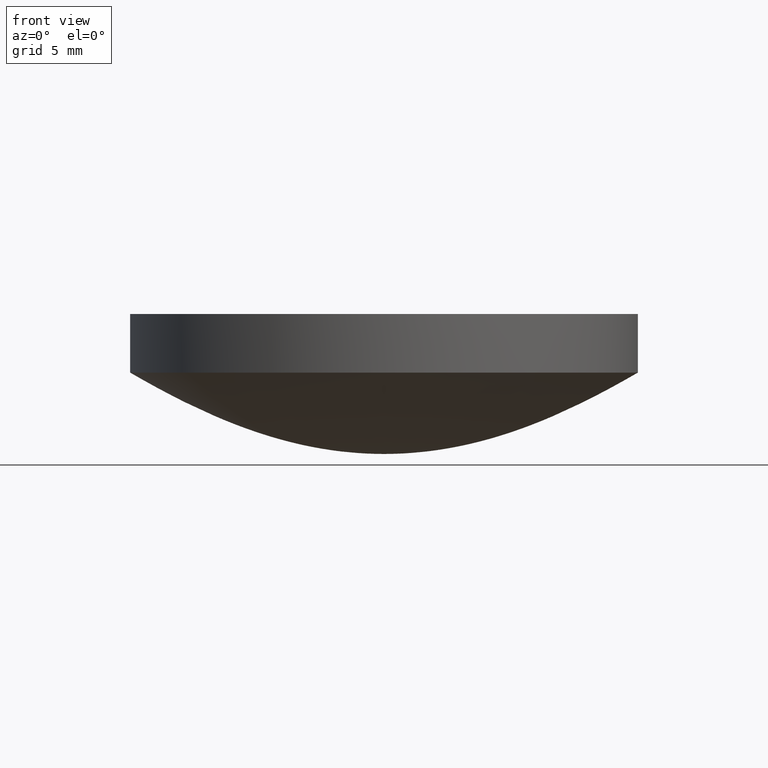
[diagram: clean part render]
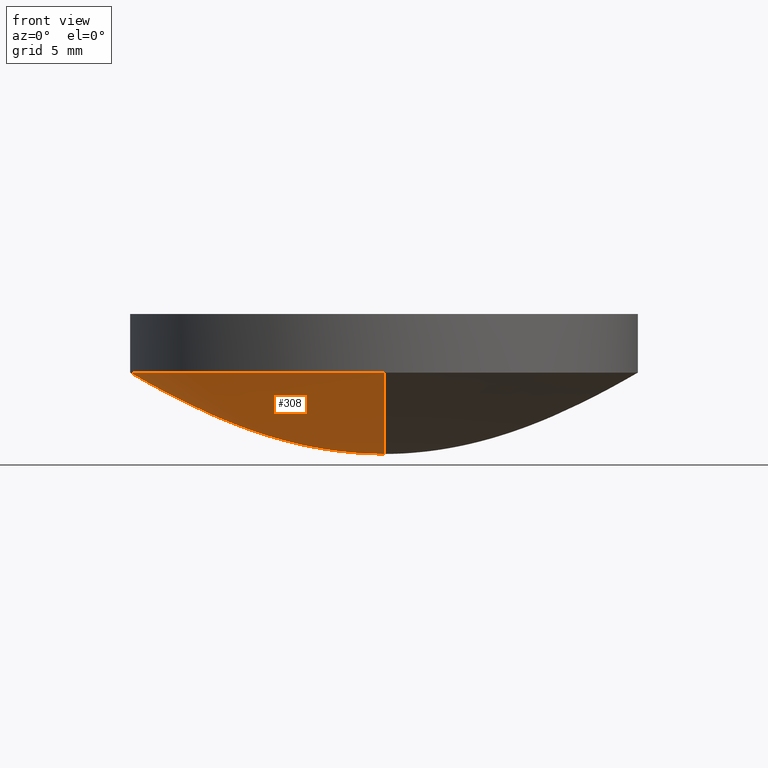
[diagram: same view with one face highlighted and labeled with its STEP entity id]
A machine part, front view. The second image highlights one B-rep face of the part: STEP entity #308.
In plain terms, the highlighted face is a freeform B-spline surface patch.
Its self-contained STEP definition (entity closure, byte-faithful):
#1 = CARTESIAN_POINT ( 'NONE',  ( 0.000000000000000000, 12.00479254064729950, 3.667064022752589914 ) ) ;
#5 = CARTESIAN_POINT ( 'NONE',  ( 7.594301245238770370, -1.395050506761360116E-15, 1.533470957631930087 ) ) ;
#7 = CARTESIAN_POINT ( 'NONE',  ( 6.711633172175790030, -6.711633172175790030, 1.203886913266370096 ) ) ;
#9 = CARTESIAN_POINT ( 'NONE',  ( -6.006055148341420846, 3.677648106459400720E-16, 0.9667882177834620228 ) ) ;
#10 = CARTESIAN_POINT ( 'NONE',  ( -6.711633172175790030, 4.109690040678139960E-16, 1.203886913266370096 ) ) ;
#11 = CARTESIAN_POINT ( 'NONE',  ( 0.000000000000000000, 0.2648328616955860082, 0.000000000000000000 ) ) ;
#13 = VERTEX_POINT ( 'NONE', #352 ) ;
#15 = CARTESIAN_POINT ( 'NONE',  ( -2.827385974584470052, 1.731274591864490094E-16, 0.2123206717078350014 ) ) ;
#16 = ORIENTED_EDGE ( 'NONE', *, *, #172, .F. ) ;
#18 = CARTESIAN_POINT ( 'NONE',  ( 0.000000000000000000, 4.417048690703129665, 0.5241299113884619887 ) ) ;
#22 = CARTESIAN_POINT ( 'NONE',  ( -6.273697908756820634E-16, -5.122863108877440119, 0.7050934592128860201 ) ) ;
#26 = CARTESIAN_POINT ( 'NONE',  ( -3.243267163845330030E-17, -0.2648328616955860082, 0.000000000000000000 ) ) ;
#28 = CARTESIAN_POINT ( 'NONE',  ( -1.555301434917141588E-15, -12.70000000000000462, 4.070440747888570243 ) ) ;
#34 = CARTESIAN_POINT ( 'NONE',  ( 0.000000000000000000, 0.000000000000000000, 0.000000000000000000 ) ) ;
#35 = CARTESIAN_POINT ( 'NONE',  ( -12.00479254064729950, 7.350815379665869921E-16, 3.667064022752589914 ) ) ;
#37 = CARTESIAN_POINT ( 'NONE',  ( 0.000000000000000000, 1.855821823687519911, 0.08601257208149051814 ) ) ;
#38 = CARTESIAN_POINT ( 'NONE',  ( -1.191719837553290114E-16, -0.9731130954516921117, 0.01543048580902020225 ) ) ;
#41 = CARTESIAN_POINT ( 'NONE',  ( 0.000000000000000000, 7.594301245238770370, 1.533470957631930087 ) ) ;
#45 = CARTESIAN_POINT ( 'NONE',  ( 0.000000000000000000, 6.711633172175790030, 1.203886913266370096 ) ) ;
#47 = CARTESIAN_POINT ( 'NONE',  ( -8.219380081356279919E-16, -6.711633172175790030, 1.203886913266370096 ) ) ;
#49 = CARTESIAN_POINT ( 'NONE',  ( -8.299626648234200488, -8.299626648234200488, 1.822880464037990311 ) ) ;
#50 = CARTESIAN_POINT ( 'NONE',  ( -9.886807867845659459, -9.886807867845650577, 2.551412349714330396 ) ) ;
#56 = CARTESIAN_POINT ( 'NONE',  ( 3.533405957217320204, -3.533405957217320204, 0.3344205416368839501 ) ) ;
#59 = CARTESIAN_POINT ( 'NONE',  ( -3.533405957217320204, -3.533405957217320204, 0.3344205416368839501 ) ) ;
#62 = CARTESIAN_POINT ( 'NONE',  ( -1.855821823687519911, 1.855821823687519911, 0.08601257208149050426 ) ) ;
#64 = B_SPLINE_CURVE_WITH_KNOTS ( 'NONE', 3,
 ( #536, #314, #486, #230, #151, #444, #68, #108, #311, #414, #241, #361, #451, #441, #38, #490, #112 ),
 .UNSPECIFIED., .F., .F.,
 ( 4, 1, 1, 1, 1, 1, 1, 1, 1, 1, 1, 1, 1, 1, 4 ),
 ( 0.000000000000000000, 0.1786505433435620072, 0.2225930362310299948, 0.3094249444054230080, 0.3523143596923489773, 0.4370447528922249969, 0.4788857308051759909, 0.5616114302726280538, 0.6024961518271300109, 0.6834766971770069865, 0.7235725209723830043, 0.8032027717589680371, 0.8427371987501770523, 0.9411358128706930337, 1.000000000000000000 ),
 .UNSPECIFIED. ) ;
#66 = CARTESIAN_POINT ( 'NONE',  ( 5.122863108877440119, -9.410546863135229472E-16, 0.7050934592128860201 ) ) ;
#68 = CARTESIAN_POINT ( 'NONE',  ( -9.300336711742419180E-16, -7.594301245238770370, 1.533470957631930087 ) ) ;
#70 = CARTESIAN_POINT ( 'NONE',  ( 0.9731130954516928888, 0.9731130954516920006, 0.01543048580902020052 ) ) ;
#73 = EDGE_CURVE ( 'NONE', #13, #524, #372, .T. ) ;
#74 = CARTESIAN_POINT ( 'NONE',  ( 0.000000000000000000, 0.000000000000000000, 0.000000000000000000 ) ) ;
#76 = CARTESIAN_POINT ( 'NONE',  ( 12.69999999999999929, -2.332952152375710015E-15, 4.070440747888570243 ) ) ;
#81 = CARTESIAN_POINT ( 'NONE',  ( 0.000000000000000000, 9.181737509768350236, 2.214785189956430145 ) ) ;
#82 = CARTESIAN_POINT ( 'NONE',  ( 9.181737509768350236, -1.686657817792350152E-15, 2.214785189956430145 ) ) ;
#83 = CARTESIAN_POINT ( 'NONE',  ( 0.000000000000000000, 11.12882161848590101, 3.181104374964820014 ) ) ;
#84 = CARTESIAN_POINT ( 'NONE',  ( -6.711633172175790030, 6.711633172175790030, 1.203886913266370096 ) ) ;
#87 = CARTESIAN_POINT ( 'NONE',  ( -9.886807867845659459, 6.053923804571030135E-16, 2.551412349714329952 ) ) ;
#89 = CARTESIAN_POINT ( 'NONE',  ( 0.000000000000000000, 6.006055148341420846, 0.9667882177834620228 ) ) ;
#90 = CARTESIAN_POINT ( 'NONE',  ( 9.181737509768350236, -9.181737509768350236, 2.214785189956430145 ) ) ;
#93 = CARTESIAN_POINT ( 'NONE',  ( 0.000000000000000000, 0.000000000000000000, 0.000000000000000000 ) ) ;
#94 = VERTEX_POINT ( 'NONE', #28 ) ;
#100 = CARTESIAN_POINT ( 'NONE',  ( -5.122863108877440119, 3.136848954378410317E-16, 0.7050934592128860201 ) ) ;
#103 = CARTESIAN_POINT ( 'NONE',  ( -1.855821823687519911, -1.855821823687519911, 0.08601257208149050426 ) ) ;
#106 = CARTESIAN_POINT ( 'NONE',  ( 0.000000000000000000, 0.9731130954516921117, 0.01543048580902020225 ) ) ;
#108 = CARTESIAN_POINT ( 'NONE',  ( -8.219380081356279919E-16, -6.711633172175790030, 1.203886913266370096 ) ) ;
#110 = CARTESIAN_POINT ( 'NONE',  ( -5.122863108877440119, -5.122863108877440119, 0.7050934592128860201 ) ) ;
#112 = CARTESIAN_POINT ( 'NONE',  ( 0.000000000000000000, 0.000000000000000000, 0.000000000000000000 ) ) ;
#116 = CARTESIAN_POINT ( 'NONE',  ( 0.000000000000000000, 12.00479254064729950, 3.667064022752589914 ) ) ;
#123 = CARTESIAN_POINT ( 'NONE',  ( -12.69999999999999929, 7.776507174585690191E-16, 4.070440747888570243 ) ) ;
#126 = CARTESIAN_POINT ( 'NONE',  ( 0.000000000000000000, 9.886807867845659459, 2.551412349714329952 ) ) ;
#129 = CARTESIAN_POINT ( 'NONE',  ( 0.000000000000000000, 7.594301245238770370, 1.533470957631930087 ) ) ;
#130 = CARTESIAN_POINT ( 'NONE',  ( 0.000000000000000000, 0.000000000000000000, 0.000000000000000000 ) ) ;
#132 = CARTESIAN_POINT ( 'NONE',  ( -9.181737509768350236, 9.181737509768350236, 2.214785189956430145 ) ) ;
#133 = CARTESIAN_POINT ( 'NONE',  ( 6.006055148341419958, -6.006055148341419958, 0.9667882177834622448 ) ) ;
#134 = CARTESIAN_POINT ( 'NONE',  ( 0.000000000000000000, 8.299626648234200488, 1.822880464037990089 ) ) ;
#136 = CARTESIAN_POINT ( 'NONE',  ( -0.9731130954516920006, 0.9731130954516920006, 0.01543048580902020052 ) ) ;
#137 = CARTESIAN_POINT ( 'NONE',  ( -3.851859888774471706E-31, 12.70000000000000284, 4.070440747888570243 ) ) ;
#143 = CARTESIAN_POINT ( 'NONE',  ( 1.855821823687519911, 1.855821823687519911, 0.08601257208149050426 ) ) ;
#145 = EDGE_LOOP ( 'NONE', ( #16, #262, #258, #304 ) ) ;
#146 = CARTESIAN_POINT ( 'NONE',  ( -3.533405957217320204, 3.533405957217320204, 0.3344205416368839501 ) ) ;
#149 = CARTESIAN_POINT ( 'NONE',  ( -0.2648328616955860082, 1.621633581922660085E-17, 0.000000000000000000 ) ) ;
#151 = CARTESIAN_POINT ( 'NONE',  ( -1.124438545194899970E-15, -9.181737509768350236, 2.214785189956430145 ) ) ;
#153 = CARTESIAN_POINT ( 'NONE',  ( 3.533405957217320648, -6.490761443391570122E-16, 0.3344205416368840611 ) ) ;
#159 = CARTESIAN_POINT ( 'NONE',  ( -12.69999999999999929, 12.69999999999999929, 4.070440747888570243 ) ) ;
#161 = CARTESIAN_POINT ( 'NONE',  ( 0.000000000000000000, 0.000000000000000000, 0.000000000000000000 ) ) ;
#163 = CARTESIAN_POINT ( 'NONE',  ( 12.00479254064729950, 12.00479254064729950, 3.667064022752589914 ) ) ;
#165 = CARTESIAN_POINT ( 'NONE',  ( 0.000000000000000000, 9.181737509768350236, 2.214785189956430145 ) ) ;
#169 = CARTESIAN_POINT ( 'NONE',  ( -8.299626648234200488, 5.082055604439041003E-16, 1.822880464037990089 ) ) ;
#170 = CARTESIAN_POINT ( 'NONE',  ( 0.000000000000000000, 3.533405957217320648, 0.3344205416368840611 ) ) ;
#171 = CARTESIAN_POINT ( 'NONE',  ( 0.000000000000000000, 6.006055148341420846, 0.9667882177834620228 ) ) ;
#172 = EDGE_CURVE ( 'NONE', #94, #436, #64, .T. ) ;
#173 = CARTESIAN_POINT ( 'NONE',  ( -6.006055148341419958, -6.006055148341419958, 0.9667882177834622448 ) ) ;
#174 = CARTESIAN_POINT ( 'NONE',  ( -7.594301245238770370, 7.594301245238770370, 1.533470957631930309 ) ) ;
#176 = CARTESIAN_POINT ( 'NONE',  ( 0.000000000000000000, 0.9731130954516921117, 0.01543048580902020225 ) ) ;
#179 = AXIS2_PLACEMENT_3D ( 'NONE', #279, #447, #456 ) ;
#182 = CARTESIAN_POINT ( 'NONE',  ( -3.462549183728990048E-16, -2.827385974584470052, 0.2123206717078350014 ) ) ;
#185 = CARTESIAN_POINT ( 'NONE',  ( 4.417048690703129665, 4.417048690703129665, 0.5241299113884619887 ) ) ;
#187 = CARTESIAN_POINT ( 'NONE',  ( 0.9731130954516921117, -1.787579756329929994E-16, 0.01543048580902020225 ) ) ;
#190 = CARTESIAN_POINT ( 'NONE',  ( 0.2648328616955859527, -0.2648328616955859527, 0.000000000000000000 ) ) ;
#195 = FACE_OUTER_BOUND ( 'NONE', #145, .T. ) ;
#198 = CARTESIAN_POINT ( 'NONE',  ( 0.000000000000000000, 9.886807867845659459, 2.551412349714329952 ) ) ;
#200 = CARTESIAN_POINT ( 'NONE',  ( 0.000000000000000000, 12.00479254064729950, 3.667064022752589914 ) ) ;
#202 = CARTESIAN_POINT ( 'NONE',  ( 0.000000000000000000, 0.9731130954516921117, 0.01543048580902020225 ) ) ;
#205 = CARTESIAN_POINT ( 'NONE',  ( 0.000000000000000000, 0.000000000000000000, 0.000000000000000000 ) ) ;
#207 = CARTESIAN_POINT ( 'NONE',  ( 11.12882161848590101, -2.044331366004090146E-15, 3.181104374964820014 ) ) ;
#208 = CARTESIAN_POINT ( 'NONE',  ( 0.000000000000000000, 6.711633172175790030, 1.203886913266370096 ) ) ;
#209 = CARTESIAN_POINT ( 'NONE',  ( 9.886807867845659459, -1.816177141371310027E-15, 2.551412349714329952 ) ) ;
#211 = CARTESIAN_POINT ( 'NONE',  ( -6.006055148341419958, 6.006055148341419958, 0.9667882177834622448 ) ) ;
#212 = CARTESIAN_POINT ( 'NONE',  ( 8.299626648234200488, -1.524616681331709934E-15, 1.822880464037990089 ) ) ;
#213 = CARTESIAN_POINT ( 'NONE',  ( 11.12882161848589924, 11.12882161848589924, 3.181104374964820014 ) ) ;
#214 = EDGE_CURVE ( 'NONE', #94, #13, #316, .T. ) ;
#221 = CARTESIAN_POINT ( 'NONE',  ( 0.000000000000000000, 4.417048690703129665, 0.5241299113884619887 ) ) ;
#224 = CARTESIAN_POINT ( 'NONE',  ( 2.827385974584470052, 2.827385974584470052, 0.2123206717078350014 ) ) ;
#228 = CARTESIAN_POINT ( 'NONE',  ( 0.000000000000000000, 5.122863108877440119, 0.7050934592128860201 ) ) ;
#230 = CARTESIAN_POINT ( 'NONE',  ( -1.210784760914209971E-15, -9.886807867845659459, 2.551412349714329952 ) ) ;
#232 = CARTESIAN_POINT ( 'NONE',  ( 0.000000000000000000, 3.533405957217320648, 0.3344205416368840611 ) ) ;
#236 = CARTESIAN_POINT ( 'NONE',  ( 0.2648328616955860082, -4.864900745767989807E-17, 0.000000000000000000 ) ) ;
#239 = CARTESIAN_POINT ( 'NONE',  ( 0.000000000000000000, 7.594301245238770370, 1.533470957631930087 ) ) ;
#241 = CARTESIAN_POINT ( 'NONE',  ( -5.409324540747589949E-16, -4.417048690703129665, 0.5241299113884619887 ) ) ;
#242 =( BOUNDED_SURFACE ( )  B_SPLINE_SURFACE ( 3, 2, ( 
 ( #539, #159, #123, #322, #493, #368, #76, #411, #364 ),
 ( #200, #354, #35, #326, #532, #543, #497, #163, #1 ),
 ( #481, #427, #292, #424, #501, #294, #207, #213, #508 ),
 ( #466, #459, #87, #50, #297, #255, #209, #337, #126 ),
 ( #506, #132, #382, #329, #376, #90, #82, #335, #165 ),
 ( #134, #248, #169, #49, #288, #418, #212, #470, #253 ),
 ( #41, #174, #333, #423, #374, #380, #5, #504, #129 ),
 ( #463, #84, #10, #378, #47, #7, #250, #421, #45 ),
 ( #171, #211, #9, #173, #507, #133, #296, #469, #89 ),
 ( #254, #338, #100, #110, #22, #257, #66, #347, #228 ),
 ( #221, #356, #488, #525, #390, #317, #393, #185, #18 ),
 ( #351, #146, #274, #59, #309, #56, #153, #446, #232 ),
 ( #340, #478, #15, #482, #182, #437, #312, #224, #402 ),
 ( #479, #62, #266, #103, #521, #442, #267, #143, #512 ),
 ( #106, #136, #439, #397, #306, #353, #187, #70, #176 ),
 ( #531, #299, #149, #270, #26, #190, #236, #534, #11 ),
 ( #474, #93, #430, #161, #462, #541, #130, #244, #74 ) ),
 .UNSPECIFIED., .F., .T., .T. ) 
 B_SPLINE_SURFACE_WITH_KNOTS ( ( 4, 1, 1, 1, 1, 1, 1, 1, 1, 1, 1, 1, 1, 1, 4 ),
 ( 3, 2, 2, 2, 3 ),
 ( 0.000000000000000000, 0.1786505433435620072, 0.2225930362310299948, 0.3094249444054230080, 0.3523143596923489773, 0.4370447528922249969, 0.4788857308051759909, 0.5616114302726280538, 0.6024961518271300109, 0.6834766971770069865, 0.7235725209723830043, 0.8032027717589680371, 0.8427371987501770523, 0.9411358128706930337, 1.000000000000000000 ),
 ( 0.000000000000000000, 90.00000000000000000, 180.0000000000000000, 270.0000000000000000, 360.0000000000000000 ),
 .UNSPECIFIED. ) 
 GEOMETRIC_REPRESENTATION_ITEM ( )  RATIONAL_B_SPLINE_SURFACE ( (
 ( 1.000000000000000000, 0.7071067811865480168, 1.000000000000000000, 0.7071067811865480168, 1.000000000000000000, 0.7071067811865480168, 1.000000000000000000, 0.7071067811865480168, 1.000000000000000000),
 ( 1.000000000000000000, 0.7071067811865480168, 1.000000000000000000, 0.7071067811865480168, 1.000000000000000000, 0.7071067811865480168, 1.000000000000000000, 0.7071067811865480168, 1.000000000000000000),
 ( 1.000000000000000000, 0.7071067811865480168, 1.000000000000000000, 0.7071067811865480168, 1.000000000000000000, 0.7071067811865480168, 1.000000000000000000, 0.7071067811865480168, 1.000000000000000000),
 ( 1.000000000000000000, 0.7071067811865480168, 1.000000000000000000, 0.7071067811865480168, 1.000000000000000000, 0.7071067811865480168, 1.000000000000000000, 0.7071067811865480168, 1.000000000000000000),
 ( 1.000000000000000000, 0.7071067811865480168, 1.000000000000000000, 0.7071067811865480168, 1.000000000000000000, 0.7071067811865480168, 1.000000000000000000, 0.7071067811865480168, 1.000000000000000000),
 ( 1.000000000000000000, 0.7071067811865480168, 1.000000000000000000, 0.7071067811865480168, 1.000000000000000000, 0.7071067811865480168, 1.000000000000000000, 0.7071067811865480168, 1.000000000000000000),
 ( 1.000000000000000000, 0.7071067811865480168, 1.000000000000000000, 0.7071067811865480168, 1.000000000000000000, 0.7071067811865480168, 1.000000000000000000, 0.7071067811865480168, 1.000000000000000000),
 ( 1.000000000000000000, 0.7071067811865480168, 1.000000000000000000, 0.7071067811865480168, 1.000000000000000000, 0.7071067811865480168, 1.000000000000000000, 0.7071067811865480168, 1.000000000000000000),
 ( 1.000000000000000000, 0.7071067811865480168, 1.000000000000000000, 0.7071067811865480168, 1.000000000000000000, 0.7071067811865480168, 1.000000000000000000, 0.7071067811865480168, 1.000000000000000000),
 ( 1.000000000000000000, 0.7071067811865480168, 1.000000000000000000, 0.7071067811865480168, 1.000000000000000000, 0.7071067811865480168, 1.000000000000000000, 0.7071067811865480168, 1.000000000000000000),
 ( 1.000000000000000000, 0.7071067811865480168, 1.000000000000000000, 0.7071067811865480168, 1.000000000000000000, 0.7071067811865480168, 1.000000000000000000, 0.7071067811865480168, 1.000000000000000000),
 ( 1.000000000000000000, 0.7071067811865480168, 1.000000000000000000, 0.7071067811865480168, 1.000000000000000000, 0.7071067811865480168, 1.000000000000000000, 0.7071067811865480168, 1.000000000000000000),
 ( 1.000000000000000000, 0.7071067811865480168, 1.000000000000000000, 0.7071067811865480168, 1.000000000000000000, 0.7071067811865480168, 1.000000000000000000, 0.7071067811865480168, 1.000000000000000000),
 ( 1.000000000000000000, 0.7071067811865480168, 1.000000000000000000, 0.7071067811865480168, 1.000000000000000000, 0.7071067811865480168, 1.000000000000000000, 0.7071067811865480168, 1.000000000000000000),
 ( 1.000000000000000000, 0.7071067811865480168, 1.000000000000000000, 0.7071067811865480168, 1.000000000000000000, 0.7071067811865480168, 1.000000000000000000, 0.7071067811865480168, 1.000000000000000000),
 ( 1.000000000000000000, 0.7071067811865480168, 1.000000000000000000, 0.7071067811865480168, 1.000000000000000000, 0.7071067811865480168, 1.000000000000000000, 0.7071067811865480168, 1.000000000000000000),
 ( 1.000000000000000000, 0.7071067811865480168, 1.000000000000000000, 0.7071067811865480168, 1.000000000000000000, 0.7071067811865480168, 1.000000000000000000, 0.7071067811865480168, 1.000000000000000000) ) ) 
 REPRESENTATION_ITEM ( '' )  SURFACE ( )  );
#244 = CARTESIAN_POINT ( 'NONE',  ( 0.000000000000000000, 0.000000000000000000, 0.000000000000000000 ) ) ;
#248 = CARTESIAN_POINT ( 'NONE',  ( -8.299626648234200488, 8.299626648234200488, 1.822880464037990311 ) ) ;
#250 = CARTESIAN_POINT ( 'NONE',  ( 6.711633172175790030, -1.232907012203440065E-15, 1.203886913266370096 ) ) ;
#253 = CARTESIAN_POINT ( 'NONE',  ( 0.000000000000000000, 8.299626648234200488, 1.822880464037990089 ) ) ;
#254 = CARTESIAN_POINT ( 'NONE',  ( 0.000000000000000000, 5.122863108877440119, 0.7050934592128860201 ) ) ;
#255 = CARTESIAN_POINT ( 'NONE',  ( 9.886807867845650577, -9.886807867845659459, 2.551412349714330396 ) ) ;
#257 = CARTESIAN_POINT ( 'NONE',  ( 5.122863108877440119, -5.122863108877440119, 0.7050934592128860201 ) ) ;
#258 = ORIENTED_EDGE ( 'NONE', *, *, #73, .T. ) ;
#262 = ORIENTED_EDGE ( 'NONE', *, *, #214, .T. ) ;
#266 = CARTESIAN_POINT ( 'NONE',  ( -1.855821823687519911, 1.136363128083360045E-16, 0.08601257208149051814 ) ) ;
#267 = CARTESIAN_POINT ( 'NONE',  ( 1.855821823687519911, -3.409089384250079888E-16, 0.08601257208149051814 ) ) ;
#270 = CARTESIAN_POINT ( 'NONE',  ( -0.2648328616955859527, -0.2648328616955859527, 0.000000000000000000 ) ) ;
#274 = CARTESIAN_POINT ( 'NONE',  ( -3.533405957217320648, 2.163587147797190369E-16, 0.3344205416368840611 ) ) ;
#275 = DIRECTION ( 'NONE',  ( -0.000000000000000000, -0.000000000000000000, -1.000000000000000000 ) ) ;
#279 = CARTESIAN_POINT ( 'NONE',  ( 1.734723475976807094E-15, -1.345898117247522881E-15, 4.070440747888570243 ) ) ;
#285 = CARTESIAN_POINT ( 'NONE',  ( 1.734723475976807094E-15, -1.345898117247522881E-15, 4.070440747888570243 ) ) ;
#288 = CARTESIAN_POINT ( 'NONE',  ( -1.016411120887809976E-15, -8.299626648234200488, 1.822880464037990089 ) ) ;
#292 = CARTESIAN_POINT ( 'NONE',  ( -11.12882161848590101, 6.814437886680300486E-16, 3.181104374964820014 ) ) ;
#294 = CARTESIAN_POINT ( 'NONE',  ( 11.12882161848589924, -11.12882161848589924, 3.181104374964820014 ) ) ;
#296 = CARTESIAN_POINT ( 'NONE',  ( 6.006055148341420846, -1.103294431937820068E-15, 0.9667882177834620228 ) ) ;
#297 = CARTESIAN_POINT ( 'NONE',  ( -1.210784760914209971E-15, -9.886807867845659459, 2.551412349714329952 ) ) ;
#299 = CARTESIAN_POINT ( 'NONE',  ( -0.2648328616955859527, 0.2648328616955859527, 0.000000000000000000 ) ) ;
#304 = ORIENTED_EDGE ( 'NONE', *, *, #331, .T. ) ;
#306 = CARTESIAN_POINT ( 'NONE',  ( -1.191719837553290114E-16, -0.9731130954516921117, 0.01543048580902020225 ) ) ;
#308 = ADVANCED_FACE ( 'NONE', ( #195 ), #242, .T. ) ;
#309 = CARTESIAN_POINT ( 'NONE',  ( -4.327174295594380739E-16, -3.533405957217320648, 0.3344205416368840611 ) ) ;
#311 = CARTESIAN_POINT ( 'NONE',  ( -7.355296212918801441E-16, -6.006055148341420846, 0.9667882177834620228 ) ) ;
#312 = CARTESIAN_POINT ( 'NONE',  ( 2.827385974584470052, -5.193823775593480142E-16, 0.2123206717078350014 ) ) ;
#314 = CARTESIAN_POINT ( 'NONE',  ( -1.470163075933170040E-15, -12.00479254064729950, 3.667064022752589914 ) ) ;
#316 = CIRCLE ( 'NONE', #434, 12.70000000000000284 ) ;
#317 = CARTESIAN_POINT ( 'NONE',  ( 4.417048690703129665, -4.417048690703129665, 0.5241299113884619887 ) ) ;
#322 = CARTESIAN_POINT ( 'NONE',  ( -12.69999999999999929, -12.69999999999999929, 4.070440747888570243 ) ) ;
#326 = CARTESIAN_POINT ( 'NONE',  ( -12.00479254064729950, -12.00479254064729950, 3.667064022752589914 ) ) ;
#328 = CARTESIAN_POINT ( 'NONE',  ( 0.000000000000000000, 0.2648328616955860082, 0.000000000000000000 ) ) ;
#329 = CARTESIAN_POINT ( 'NONE',  ( -9.181737509768350236, -9.181737509768350236, 2.214785189956430145 ) ) ;
#331 = EDGE_CURVE ( 'NONE', #524, #436, #384, .T. ) ;
#333 = CARTESIAN_POINT ( 'NONE',  ( -7.594301245238770370, 4.650168355871209590E-16, 1.533470957631930087 ) ) ;
#334 = CARTESIAN_POINT ( 'NONE',  ( 0.000000000000000000, 6.006055148341420846, 0.9667882177834620228 ) ) ;
#335 = CARTESIAN_POINT ( 'NONE',  ( 9.181737509768350236, 9.181737509768350236, 2.214785189956430145 ) ) ;
#337 = CARTESIAN_POINT ( 'NONE',  ( 9.886807867845659459, 9.886807867845650577, 2.551412349714330396 ) ) ;
#338 = CARTESIAN_POINT ( 'NONE',  ( -5.122863108877440119, 5.122863108877440119, 0.7050934592128860201 ) ) ;
#340 = CARTESIAN_POINT ( 'NONE',  ( 0.000000000000000000, 2.827385974584470052, 0.2123206717078350014 ) ) ;
#347 = CARTESIAN_POINT ( 'NONE',  ( 5.122863108877440119, 5.122863108877440119, 0.7050934592128860201 ) ) ;
#351 = CARTESIAN_POINT ( 'NONE',  ( 0.000000000000000000, 3.533405957217320648, 0.3344205416368840611 ) ) ;
#352 = CARTESIAN_POINT ( 'NONE',  ( -12.70000000000000284, 6.671230152170136933E-16, 4.070440747888570243 ) ) ;
#353 = CARTESIAN_POINT ( 'NONE',  ( 0.9731130954516920006, -0.9731130954516928888, 0.01543048580902020052 ) ) ;
#354 = CARTESIAN_POINT ( 'NONE',  ( -12.00479254064729950, 12.00479254064729950, 3.667064022752589914 ) ) ;
#356 = CARTESIAN_POINT ( 'NONE',  ( -4.417048690703129665, 4.417048690703129665, 0.5241299113884619887 ) ) ;
#361 = CARTESIAN_POINT ( 'NONE',  ( -4.327174295594380739E-16, -3.533405957217320648, 0.3344205416368840611 ) ) ;
#364 = CARTESIAN_POINT ( 'NONE',  ( 0.000000000000000000, 12.69999999999999929, 4.070440747888570243 ) ) ;
#366 = CARTESIAN_POINT ( 'NONE',  ( 0.000000000000000000, 5.122863108877440119, 0.7050934592128860201 ) ) ;
#368 = CARTESIAN_POINT ( 'NONE',  ( 12.69999999999999929, -12.69999999999999929, 4.070440747888570243 ) ) ;
#372 = CIRCLE ( 'NONE', #179, 12.70000000000000284 ) ;
#374 = CARTESIAN_POINT ( 'NONE',  ( -9.300336711742419180E-16, -7.594301245238770370, 1.533470957631930087 ) ) ;
#376 = CARTESIAN_POINT ( 'NONE',  ( -1.124438545194899970E-15, -9.181737509768350236, 2.214785189956430145 ) ) ;
#378 = CARTESIAN_POINT ( 'NONE',  ( -6.711633172175790030, -6.711633172175790030, 1.203886913266370096 ) ) ;
#380 = CARTESIAN_POINT ( 'NONE',  ( 7.594301245238770370, -7.594301245238770370, 1.533470957631930309 ) ) ;
#382 = CARTESIAN_POINT ( 'NONE',  ( -9.181737509768350236, 5.622192725974499850E-16, 2.214785189956430145 ) ) ;
#384 = B_SPLINE_CURVE_WITH_KNOTS ( 'NONE', 3,
 ( #416, #116, #83, #198, #81, #545, #239, #208, #334, #366, #410, #170, #413, #37, #202, #328, #34 ),
 .UNSPECIFIED., .F., .F.,
 ( 4, 1, 1, 1, 1, 1, 1, 1, 1, 1, 1, 1, 1, 1, 4 ),
 ( 0.000000000000000000, 0.1786505433435620072, 0.2225930362310299948, 0.3094249444054230080, 0.3523143596923489773, 0.4370447528922249969, 0.4788857308051759909, 0.5616114302726280538, 0.6024961518271300109, 0.6834766971770069865, 0.7235725209723830043, 0.8032027717589680371, 0.8427371987501770523, 0.9411358128706930337, 1.000000000000000000 ),
 .UNSPECIFIED. ) ;
#390 = CARTESIAN_POINT ( 'NONE',  ( -5.409324540747589949E-16, -4.417048690703129665, 0.5241299113884619887 ) ) ;
#393 = CARTESIAN_POINT ( 'NONE',  ( 4.417048690703129665, -8.113986811121390347E-16, 0.5241299113884619887 ) ) ;
#397 = CARTESIAN_POINT ( 'NONE',  ( -0.9731130954516920006, -0.9731130954516920006, 0.01543048580902020052 ) ) ;
#400 = DIRECTION ( 'NONE',  ( -1.000000000000000000, 0.000000000000000000, 0.000000000000000000 ) ) ;
#402 = CARTESIAN_POINT ( 'NONE',  ( 0.000000000000000000, 2.827385974584470052, 0.2123206717078350014 ) ) ;
#410 = CARTESIAN_POINT ( 'NONE',  ( 0.000000000000000000, 4.417048690703129665, 0.5241299113884619887 ) ) ;
#411 = CARTESIAN_POINT ( 'NONE',  ( 12.69999999999999929, 12.69999999999999929, 4.070440747888570243 ) ) ;
#413 = CARTESIAN_POINT ( 'NONE',  ( 0.000000000000000000, 2.827385974584470052, 0.2123206717078350014 ) ) ;
#414 = CARTESIAN_POINT ( 'NONE',  ( -6.273697908756820634E-16, -5.122863108877440119, 0.7050934592128860201 ) ) ;
#416 = CARTESIAN_POINT ( 'NONE',  ( -3.851859888774471706E-31, 12.70000000000000284, 4.070440747888570243 ) ) ;
#418 = CARTESIAN_POINT ( 'NONE',  ( 8.299626648234200488, -8.299626648234200488, 1.822880464037990311 ) ) ;
#421 = CARTESIAN_POINT ( 'NONE',  ( 6.711633172175790030, 6.711633172175790030, 1.203886913266370096 ) ) ;
#423 = CARTESIAN_POINT ( 'NONE',  ( -7.594301245238770370, -7.594301245238770370, 1.533470957631930309 ) ) ;
#424 = CARTESIAN_POINT ( 'NONE',  ( -11.12882161848589924, -11.12882161848589924, 3.181104374964820014 ) ) ;
#427 = CARTESIAN_POINT ( 'NONE',  ( -11.12882161848589924, 11.12882161848589924, 3.181104374964820014 ) ) ;
#430 = CARTESIAN_POINT ( 'NONE',  ( 0.000000000000000000, 0.000000000000000000, 0.000000000000000000 ) ) ;
#434 = AXIS2_PLACEMENT_3D ( 'NONE', #285, #275, #400 ) ;
#436 = VERTEX_POINT ( 'NONE', #205 ) ;
#437 = CARTESIAN_POINT ( 'NONE',  ( 2.827385974584470052, -2.827385974584470052, 0.2123206717078350014 ) ) ;
#439 = CARTESIAN_POINT ( 'NONE',  ( -0.9731130954516921117, 5.958599187766440708E-17, 0.01543048580902020225 ) ) ;
#441 = CARTESIAN_POINT ( 'NONE',  ( -2.272726256166720090E-16, -1.855821823687519911, 0.08601257208149051814 ) ) ;
#442 = CARTESIAN_POINT ( 'NONE',  ( 1.855821823687519911, -1.855821823687519911, 0.08601257208149050426 ) ) ;
#444 = CARTESIAN_POINT ( 'NONE',  ( -1.016411120887809976E-15, -8.299626648234200488, 1.822880464037990089 ) ) ;
#446 = CARTESIAN_POINT ( 'NONE',  ( 3.533405957217320204, 3.533405957217320204, 0.3344205416368839501 ) ) ;
#447 = DIRECTION ( 'NONE',  ( -0.000000000000000000, -0.000000000000000000, -1.000000000000000000 ) ) ;
#451 = CARTESIAN_POINT ( 'NONE',  ( -3.462549183728990048E-16, -2.827385974584470052, 0.2123206717078350014 ) ) ;
#456 = DIRECTION ( 'NONE',  ( -1.000000000000000000, 0.000000000000000000, 0.000000000000000000 ) ) ;
#459 = CARTESIAN_POINT ( 'NONE',  ( -9.886807867845659459, 9.886807867845659459, 2.551412349714330396 ) ) ;
#462 = CARTESIAN_POINT ( 'NONE',  ( 0.000000000000000000, 0.000000000000000000, 0.000000000000000000 ) ) ;
#463 = CARTESIAN_POINT ( 'NONE',  ( 0.000000000000000000, 6.711633172175790030, 1.203886913266370096 ) ) ;
#466 = CARTESIAN_POINT ( 'NONE',  ( 0.000000000000000000, 9.886807867845659459, 2.551412349714329952 ) ) ;
#469 = CARTESIAN_POINT ( 'NONE',  ( 6.006055148341419958, 6.006055148341419958, 0.9667882177834622448 ) ) ;
#470 = CARTESIAN_POINT ( 'NONE',  ( 8.299626648234200488, 8.299626648234200488, 1.822880464037990311 ) ) ;
#474 = CARTESIAN_POINT ( 'NONE',  ( 0.000000000000000000, 0.000000000000000000, 0.000000000000000000 ) ) ;
#478 = CARTESIAN_POINT ( 'NONE',  ( -2.827385974584470052, 2.827385974584470052, 0.2123206717078350014 ) ) ;
#479 = CARTESIAN_POINT ( 'NONE',  ( 0.000000000000000000, 1.855821823687519911, 0.08601257208149051814 ) ) ;
#481 = CARTESIAN_POINT ( 'NONE',  ( 0.000000000000000000, 11.12882161848590101, 3.181104374964820014 ) ) ;
#482 = CARTESIAN_POINT ( 'NONE',  ( -2.827385974584470052, -2.827385974584470052, 0.2123206717078350014 ) ) ;
#486 = CARTESIAN_POINT ( 'NONE',  ( -1.362887577336060097E-15, -11.12882161848590101, 3.181104374964820014 ) ) ;
#488 = CARTESIAN_POINT ( 'NONE',  ( -4.417048690703129665, 2.704662270373799905E-16, 0.5241299113884619887 ) ) ;
#490 = CARTESIAN_POINT ( 'NONE',  ( -3.243267163845330030E-17, -0.2648328616955860082, 0.000000000000000000 ) ) ;
#493 = CARTESIAN_POINT ( 'NONE',  ( -1.555301434917140010E-15, -12.69999999999999929, 4.070440747888570243 ) ) ;
#497 = CARTESIAN_POINT ( 'NONE',  ( 12.00479254064729950, -2.205244613899760188E-15, 3.667064022752589914 ) ) ;
#501 = CARTESIAN_POINT ( 'NONE',  ( -1.362887577336060097E-15, -11.12882161848590101, 3.181104374964820014 ) ) ;
#504 = CARTESIAN_POINT ( 'NONE',  ( 7.594301245238770370, 7.594301245238770370, 1.533470957631930309 ) ) ;
#506 = CARTESIAN_POINT ( 'NONE',  ( 0.000000000000000000, 9.181737509768350236, 2.214785189956430145 ) ) ;
#507 = CARTESIAN_POINT ( 'NONE',  ( -7.355296212918801441E-16, -6.006055148341420846, 0.9667882177834620228 ) ) ;
#508 = CARTESIAN_POINT ( 'NONE',  ( 0.000000000000000000, 11.12882161848590101, 3.181104374964820014 ) ) ;
#512 = CARTESIAN_POINT ( 'NONE',  ( 0.000000000000000000, 1.855821823687519911, 0.08601257208149051814 ) ) ;
#521 = CARTESIAN_POINT ( 'NONE',  ( -2.272726256166720090E-16, -1.855821823687519911, 0.08601257208149051814 ) ) ;
#524 = VERTEX_POINT ( 'NONE', #137 ) ;
#525 = CARTESIAN_POINT ( 'NONE',  ( -4.417048690703129665, -4.417048690703129665, 0.5241299113884619887 ) ) ;
#531 = CARTESIAN_POINT ( 'NONE',  ( 0.000000000000000000, 0.2648328616955860082, 0.000000000000000000 ) ) ;
#532 = CARTESIAN_POINT ( 'NONE',  ( -1.470163075933170040E-15, -12.00479254064729950, 3.667064022752589914 ) ) ;
#534 = CARTESIAN_POINT ( 'NONE',  ( 0.2648328616955859527, 0.2648328616955859527, 0.000000000000000000 ) ) ;
#536 = CARTESIAN_POINT ( 'NONE',  ( -1.555301434917141588E-15, -12.70000000000000462, 4.070440747888570243 ) ) ;
#539 = CARTESIAN_POINT ( 'NONE',  ( 0.000000000000000000, 12.69999999999999929, 4.070440747888570243 ) ) ;
#541 = CARTESIAN_POINT ( 'NONE',  ( 0.000000000000000000, 0.000000000000000000, 0.000000000000000000 ) ) ;
#543 = CARTESIAN_POINT ( 'NONE',  ( 12.00479254064729950, -12.00479254064729950, 3.667064022752589914 ) ) ;
#545 = CARTESIAN_POINT ( 'NONE',  ( 0.000000000000000000, 8.299626648234200488, 1.822880464037990089 ) ) ;